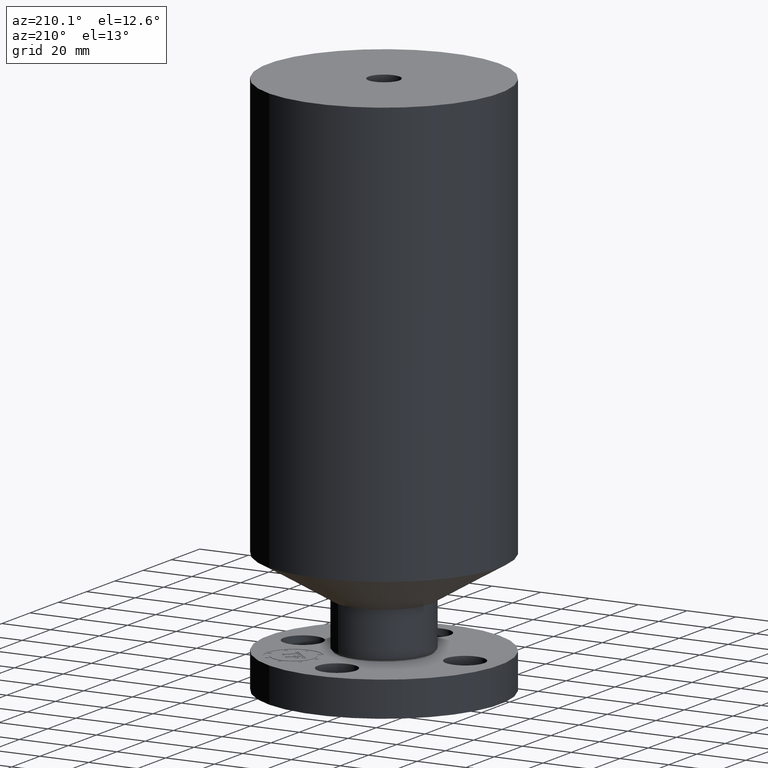
[diagram: clean part render]
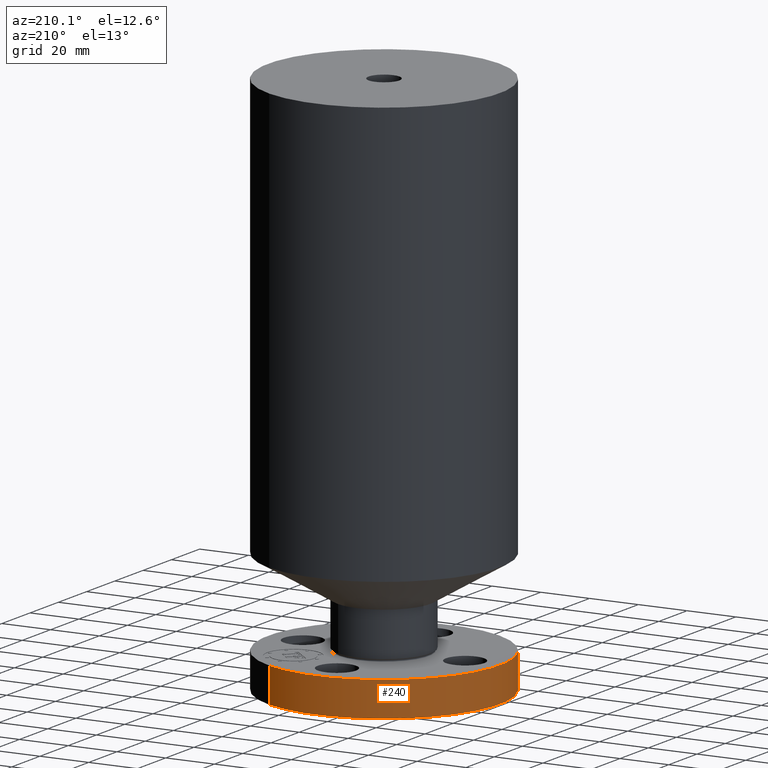
[diagram: same view with one face highlighted and labeled with its STEP entity id]
A machine part, auxiliary view. The second image highlights one B-rep face of the part: STEP entity #240.
In plain terms, the highlighted cylindrical surface (partial cylindrical patch) has radius 47.625 mm, axis along (0, 0, -1).
Its self-contained STEP definition (entity closure, byte-faithful):
#91=AXIS2_PLACEMENT_3D('Circle Axis2P3D',#89,#90,$) ;
#213=AXIS2_PLACEMENT_3D('Cylinder Axis2P3D',#210,#211,#212) ;
#217=AXIS2_PLACEMENT_3D('Circle Axis2P3D',#215,#216,$) ;
#84=CARTESIAN_POINT('Vertex',(0.898922884886,1.64546730355,0.560000000002)) ;
#86=CARTESIAN_POINT('Vertex',(-0.898922884886,-1.64546730355,0.560000000002)) ;
#89=CARTESIAN_POINT('Axis2P3D Location',(0.,0.,0.560000000002)) ;
#210=CARTESIAN_POINT('Axis2P3D Location',(0.,0.,4.25000000002)) ;
#215=CARTESIAN_POINT('Axis2P3D Location',(0.,0.,0.)) ;
#219=CARTESIAN_POINT('Vertex',(-0.898922884886,-1.64546730355,0.)) ;
#221=CARTESIAN_POINT('Vertex',(0.898922884886,1.64546730355,0.)) ;
#224=CARTESIAN_POINT('Line Origine',(-0.898922884886,-1.64546730355,5.35475952644)) ;
#229=CARTESIAN_POINT('Line Origine',(0.898922884886,1.64546730355,5.35475952644)) ;
#90=DIRECTION('Axis2P3D Direction',(0.,0.,-0.0393700787402)) ;
#211=DIRECTION('Axis2P3D Direction',(0.,0.,-0.0393700787402)) ;
#212=DIRECTION('Axis2P3D XDirection',(-0.0188750212049,-0.0345504945626,0.)) ;
#216=DIRECTION('Axis2P3D Direction',(0.,0.,-0.0393700787402)) ;
#225=DIRECTION('Vector Direction',(0.,0.,-0.0393700787402)) ;
#230=DIRECTION('Vector Direction',(0.,0.,-0.0393700787402)) ;
#226=VECTOR('Line Direction',#225,0.0393700787402) ;
#231=VECTOR('Line Direction',#230,0.0393700787402) ;
#235=ORIENTED_EDGE('',*,*,#223,.F.) ;
#236=ORIENTED_EDGE('',*,*,#228,.T.) ;
#237=ORIENTED_EDGE('',*,*,#93,.T.) ;
#238=ORIENTED_EDGE('',*,*,#233,.F.) ;
#240=ADVANCED_FACE('PartBody',(#239),#214,.T.) ;
#92=CIRCLE('generated circle',#91,1.87500000001) ;
#218=CIRCLE('generated circle',#217,1.87500000001) ;
#214=CYLINDRICAL_SURFACE('generated cylinder',#213,1.87500000001) ;
#93=EDGE_CURVE('',#87,#85,#92,.T.) ;
#223=EDGE_CURVE('',#220,#222,#218,.T.) ;
#228=EDGE_CURVE('',#220,#87,#227,.F.) ;
#233=EDGE_CURVE('',#222,#85,#232,.F.) ;
#234=EDGE_LOOP('',(#235,#236,#237,#238)) ;
#239=FACE_OUTER_BOUND('',#234,.T.) ;
#227=LINE('Line',#224,#226) ;
#232=LINE('Line',#229,#231) ;
#85=VERTEX_POINT('',#84) ;
#87=VERTEX_POINT('',#86) ;
#220=VERTEX_POINT('',#219) ;
#222=VERTEX_POINT('',#221) ;